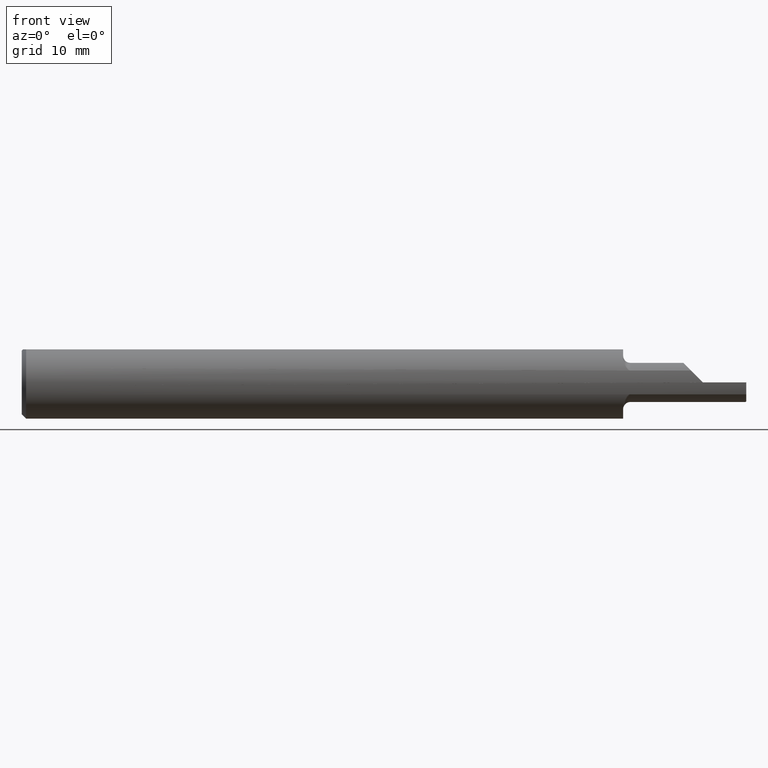
[diagram: clean part render]
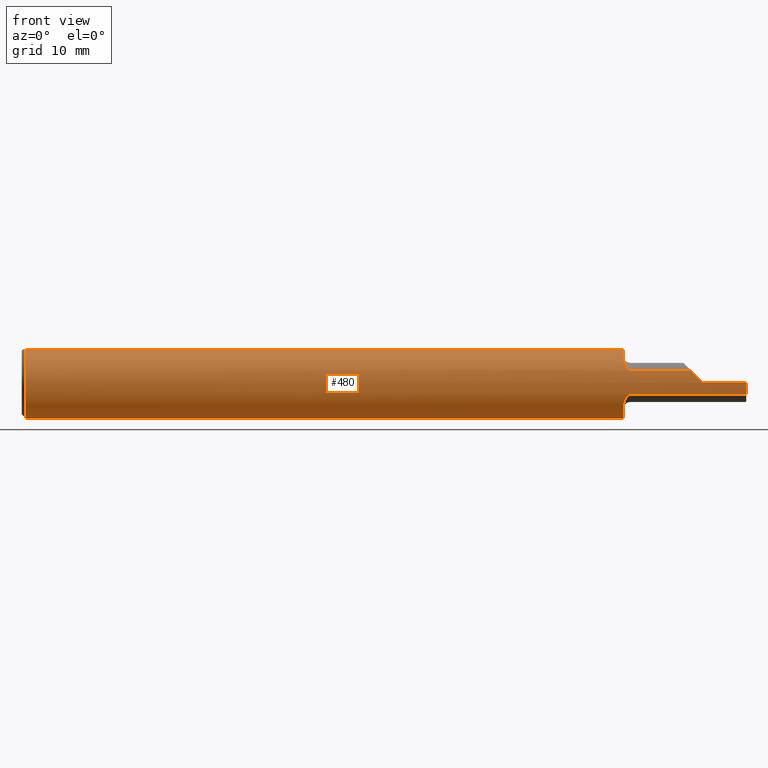
[diagram: same view with one face highlighted and labeled with its STEP entity id]
A machine part, front view. The second image highlights one B-rep face of the part: STEP entity #480.
In plain terms, the highlighted cylindrical surface (edge-blend (fillet) strip) has radius 3.1712 mm, axis along (-1, -0, -0).
Its self-contained STEP definition (entity closure, byte-faithful):
#5 = DIRECTION ( 'NONE',  ( -1.000000000000000000, -0.000000000000000000, -0.000000000000000000 ) ) ;
#11 = ORIENTED_EDGE ( 'NONE', *, *, #742, .F. ) ;
#20 = CIRCLE ( 'NONE', #298, 0.1248500000000000026 ) ;
#21 = VERTEX_POINT ( 'NONE', #659 ) ;
#30 = CARTESIAN_POINT ( 'NONE',  ( 2.500000000000000000, -0.1178880730380729852, -0.04110869415792685333 ) ) ;
#43 = CARTESIAN_POINT ( 'NONE',  ( 2.500000000000000000, 0.000000000000000000, 0.000000000000000000 ) ) ;
#45 = EDGE_CURVE ( 'NONE', #618, #645, #666, .T. ) ;
#54 = LINE ( 'NONE', #920, #256 ) ;
#69 = CARTESIAN_POINT ( 'NONE',  ( 2.088805720551186074, -0.1151363458569193837, -0.04834088676794719153 ) ) ;
#75 = CARTESIAN_POINT ( 'NONE',  ( 2.078579630862570582, -0.1044777942651883146, -0.06855471305740289123 ) ) ;
#79 = ORIENTED_EDGE ( 'NONE', *, *, #161, .T. ) ;
#82 = VERTEX_POINT ( 'NONE', #880 ) ;
#114 = EDGE_CURVE ( 'NONE', #171, #329, #207, .T. ) ;
#132 = CARTESIAN_POINT ( 'NONE',  ( 2.097138575833328744, -0.1178880730380729991, 0.04110869415792683251 ) ) ;
#133 = DIRECTION ( 'NONE',  ( 1.000000000000000000, 0.000000000000000000, 0.000000000000000000 ) ) ;
#148 = VERTEX_POINT ( 'NONE', #688 ) ;
#157 = CARTESIAN_POINT ( 'NONE',  ( 2.350000000000000089, -0.1248499599519359016, 9.999999999961100661E-05 ) ) ;
#161 = EDGE_CURVE ( 'NONE', #171, #21, #975, .T. ) ;
#162 = EDGE_CURVE ( 'NONE', #538, #399, #700, .T. ) ;
#171 = VERTEX_POINT ( 'NONE', #448 ) ;
#174 = CARTESIAN_POINT ( 'NONE',  ( 2.336004490154644841, -0.1248387500886322388, 0.01409550984535482172 ) ) ;
#181 = CARTESIAN_POINT ( 'NONE',  ( 2.500000000000000000, 0.000000000000000000, 0.000000000000000000 ) ) ;
#207 = CIRCLE ( 'NONE', #335, 0.1248500000000000026 ) ;
#217 = CARTESIAN_POINT ( 'NONE',  ( 2.075463484348166965, -0.09455996579217590403, -0.08170711654871570806 ) ) ;
#226 = CARTESIAN_POINT ( 'NONE',  ( 2.075000000000000178, -0.05124158467494927677, 0.1138500000000000068 ) ) ;
#229 = DIRECTION ( 'NONE',  ( 1.000000000000000000, 0.000000000000000000, 0.000000000000000000 ) ) ;
#237 = VECTOR ( 'NONE', #229, 39.37007874015748143 ) ;
#240 = ORIENTED_EDGE ( 'NONE', *, *, #735, .T. ) ;
#244 = VERTEX_POINT ( 'NONE', #785 ) ;
#246 = LINE ( 'NONE', #776, #237 ) ;
#249 = ORIENTED_EDGE ( 'NONE', *, *, #840, .T. ) ;
#253 = CARTESIAN_POINT ( 'NONE',  ( 2.322206397681024992, -0.1224963014591190363, 0.02789360231897465570 ) ) ;
#256 = VECTOR ( 'NONE', #398, 39.37007874015748143 ) ;
#267 = CARTESIAN_POINT ( 'NONE',  ( 2.500000000000000000, -0.05124158467494929065, 0.1138500000000000068 ) ) ;
#270 = DIRECTION ( 'NONE',  ( 1.000000000000000000, 0.000000000000000000, 0.000000000000000000 ) ) ;
#292 = CARTESIAN_POINT ( 'NONE',  ( 2.100000000000000089, -0.1178880730380729852, 0.04110869415792685333 ) ) ;
#295 = CARTESIAN_POINT ( 'NONE',  ( 0.01499999999999970281, 0.000000000000000000, 0.000000000000000000 ) ) ;
#298 = AXIS2_PLACEMENT_3D ( 'NONE', #956, #270, #572 ) ;
#316 = ORIENTED_EDGE ( 'NONE', *, *, #855, .F. ) ;
#329 = VERTEX_POINT ( 'NONE', #414 ) ;
#335 = AXIS2_PLACEMENT_3D ( 'NONE', #758, #133, #598 ) ;
#343 = CYLINDRICAL_SURFACE ( 'NONE', #746, 0.1248500000000000026 ) ;
#355 = FACE_OUTER_BOUND ( 'NONE', #468, .T. ) ;
#368 = CARTESIAN_POINT ( 'NONE',  ( 2.075472843869164308, -0.09461185655952933371, 0.08164619401006140142 ) ) ;
#369 = CARTESIAN_POINT ( 'NONE',  ( 2.094569448206967444, -0.1173612273236402659, -0.04263257538414207820 ) ) ;
#370 = ORIENTED_EDGE ( 'NONE', *, *, #574, .T. ) ;
#372 = CARTESIAN_POINT ( 'NONE',  ( 2.082148820116562771, -0.1099047179638918265, 0.05947070158462895717 ) ) ;
#377 = DIRECTION ( 'NONE',  ( 1.000000000000000000, -0.000000000000000000, -0.000000000000000000 ) ) ;
#398 = DIRECTION ( 'NONE',  ( -1.000000000000000000, -0.000000000000000000, -0.000000000000000000 ) ) ;
#399 = VERTEX_POINT ( 'NONE', #951 ) ;
#400 = AXIS2_PLACEMENT_3D ( 'NONE', #181, #484, #762 ) ;
#414 = CARTESIAN_POINT ( 'NONE',  ( 2.075000000000000178, 0.05124158467494929065, 0.1138500000000000068 ) ) ;
#417 = B_SPLINE_CURVE_WITH_KNOTS ( 'NONE', 3,
 ( #292, #132, #447, #826, #971, #664, #372, #917, #674, #368, #668, #451 ),
 .UNSPECIFIED., .F., .F.,
 ( 4, 2, 2, 2, 2, 4 ),
 ( 0.000000000000000000, 0.0002139781332481023612, 0.0004279562664962047224, 0.0008559125329924097700, 0.001283868799488614709, 0.001711825065984819974 ),
 .UNSPECIFIED. ) ;
#420 = CARTESIAN_POINT ( 'NONE',  ( 2.350000000000000089, 0.000000000000000000, 0.000000000000000000 ) ) ;
#422 = CARTESIAN_POINT ( 'NONE',  ( 2.075000000000000178, -0.08680804195804191215, 0.08973230383429835200 ) ) ;
#433 = ORIENTED_EDGE ( 'NONE', *, *, #960, .F. ) ;
#440 = CARTESIAN_POINT ( 'NONE',  ( 2.500000000000000000, 0.05124158467494929065, 0.1138500000000000068 ) ) ;
#441 = CARTESIAN_POINT ( 'NONE',  ( 2.082139659934243880, -0.1098890007994705875, -0.05949592994647465855 ) ) ;
#446 = CIRCLE ( 'NONE', #685, 0.1248500000000000026 ) ;
#447 = CARTESIAN_POINT ( 'NONE',  ( 2.094575795023728038, -0.1173638605453972278, 0.04262586039006312916 ) ) ;
#448 = CARTESIAN_POINT ( 'NONE',  ( 2.075000000000000178, -0.08680804195804191215, -0.08973230383429835200 ) ) ;
#451 = CARTESIAN_POINT ( 'NONE',  ( 2.075000000000000178, -0.08680804195804191215, 0.08973230383429835200 ) ) ;
#452 = CARTESIAN_POINT ( 'NONE',  ( 2.075000000000000178, -0.08680804195804191215, -0.08973230383429835200 ) ) ;
#453 = EDGE_CURVE ( 'NONE', #244, #148, #446, .T. ) ;
#457 = CARTESIAN_POINT ( 'NONE',  ( 0.01499999999999969413, -0.05124158467494929065, 0.1138500000000000068 ) ) ;
#460 = ORIENTED_EDGE ( 'NONE', *, *, #162, .T. ) ;
#468 = EDGE_LOOP ( 'NONE', ( #316, #11, #731, #569, #240, #433, #555, #890, #933, #249, #460, #370, #475, #79 ) ) ;
#475 = ORIENTED_EDGE ( 'NONE', *, *, #114, .F. ) ;
#480 = ADVANCED_FACE ( 'NONE', ( #355 ), #343, .T. ) ;
#481 = VERTEX_POINT ( 'NONE', #812 ) ;
#484 = DIRECTION ( 'NONE',  ( 1.000000000000000000, 0.000000000000000000, 0.000000000000000000 ) ) ;
#492 = CIRCLE ( 'NONE', #839, 0.1248500000000000026 ) ;
#498 = EDGE_CURVE ( 'NONE', #618, #778, #20, .T. ) ;
#505 = DIRECTION ( 'NONE',  ( -1.000000000000000000, -0.000000000000000000, -0.000000000000000000 ) ) ;
#521 = DIRECTION ( 'NONE',  ( 1.000000000000000000, -0.000000000000000000, -0.000000000000000000 ) ) ;
#522 = DIRECTION ( 'NONE',  ( 1.000000000000000000, 0.000000000000000000, 0.000000000000000000 ) ) ;
#525 = VECTOR ( 'NONE', #873, 39.37007874015748143 ) ;
#532 = EDGE_CURVE ( 'NONE', #481, #778, #417, .T. ) ;
#538 = VERTEX_POINT ( 'NONE', #982 ) ;
#555 = ORIENTED_EDGE ( 'NONE', *, *, #532, .T. ) ;
#569 = ORIENTED_EDGE ( 'NONE', *, *, #453, .T. ) ;
#572 = DIRECTION ( 'NONE',  ( 0.000000000000000000, 0.000000000000000000, -1.000000000000000000 ) ) ;
#574 = EDGE_CURVE ( 'NONE', #399, #329, #757, .T. ) ;
#598 = DIRECTION ( 'NONE',  ( 0.000000000000000000, 0.000000000000000000, -1.000000000000000000 ) ) ;
#607 = CARTESIAN_POINT ( 'NONE',  ( 2.262500000000000178, -0.1178880730380729852, -0.04110869415792685333 ) ) ;
#610 = CARTESIAN_POINT ( 'NONE',  ( 2.077244443432142429, -0.1013644936721858902, -0.07309500289283984986 ) ) ;
#618 = VERTEX_POINT ( 'NONE', #226 ) ;
#645 = VERTEX_POINT ( 'NONE', #457 ) ;
#659 = CARTESIAN_POINT ( 'NONE',  ( 2.100000000000000089, -0.1178880730380729852, -0.04110869415792685333 ) ) ;
#664 = CARTESIAN_POINT ( 'NONE',  ( 2.084345155916293546, -0.1122401308722703883, 0.05488497975249280458 ) ) ;
#666 = LINE ( 'NONE', #267, #525 ) ;
#668 = CARTESIAN_POINT ( 'NONE',  ( 2.075000000000001066, -0.09084801577314524645, 0.08582398763750828663 ) ) ;
#674 = CARTESIAN_POINT ( 'NONE',  ( 2.077257066675622710, -0.1013963922970315401, 0.07304981880275966677 ) ) ;
#680 = DIRECTION ( 'NONE',  ( 0.000000000000000000, 0.000000000000000000, -1.000000000000000000 ) ) ;
#685 = AXIS2_PLACEMENT_3D ( 'NONE', #420, #962, #948 ) ;
#688 = CARTESIAN_POINT ( 'NONE',  ( 2.350000000000000089, -0.1248499599519359016, 9.999999999961100661E-05 ) ) ;
#700 = CIRCLE ( 'NONE', #877, 0.1248500000000000026 ) ;
#717 = VECTOR ( 'NONE', #5, 39.37007874015748143 ) ;
#731 = ORIENTED_EDGE ( 'NONE', *, *, #958, .T. ) ;
#735 = EDGE_CURVE ( 'NONE', #148, #845, #825, .T. ) ;
#741 = CARTESIAN_POINT ( 'NONE',  ( 2.308991305842072794, -0.1178880730380730268, 0.04110869415792675619 ) ) ;
#742 = EDGE_CURVE ( 'NONE', #82, #764, #908, .T. ) ;
#745 = CARTESIAN_POINT ( 'NONE',  ( 2.090487603854009446, -0.1159976367288706595, -0.04621409347929126415 ) ) ;
#746 = AXIS2_PLACEMENT_3D ( 'NONE', #43, #505, #965 ) ;
#751 = CARTESIAN_POINT ( 'NONE',  ( 2.100000000000000089, -0.1178880730380729852, -0.04110869415792685333 ) ) ;
#757 = LINE ( 'NONE', #440, #774 ) ;
#758 = CARTESIAN_POINT ( 'NONE',  ( 2.075000000000000178, 0.000000000000000000, 0.000000000000000000 ) ) ;
#762 = DIRECTION ( 'NONE',  ( 0.000000000000000000, 0.000000000000000000, -1.000000000000000000 ) ) ;
#764 = VERTEX_POINT ( 'NONE', #30 ) ;
#774 = VECTOR ( 'NONE', #522, 39.37007874015748143 ) ;
#776 = CARTESIAN_POINT ( 'NONE',  ( 2.262500000000000178, -0.1178880730380729852, 0.04110869415792685333 ) ) ;
#778 = VERTEX_POINT ( 'NONE', #422 ) ;
#785 = CARTESIAN_POINT ( 'NONE',  ( 2.350000000000000089, -0.1248499999999999888, -3.367667473011536351E-17 ) ) ;
#812 = CARTESIAN_POINT ( 'NONE',  ( 2.100000000000000089, -0.1178880730380729852, 0.04110869415792685333 ) ) ;
#815 = DIRECTION ( 'NONE',  ( 0.000000000000000000, 0.000000000000000000, -1.000000000000000000 ) ) ;
#822 = CARTESIAN_POINT ( 'NONE',  ( 2.084341522824309401, -0.1122386781385961430, -0.05488888332692708205 ) ) ;
#825 =( BOUNDED_CURVE ( )  B_SPLINE_CURVE ( 3, ( #157, #174, #253, #864 ),
 .UNSPECIFIED., .F., .T. ) 
 B_SPLINE_CURVE_WITH_KNOTS ( ( 4, 4 ),
 ( 4.713189941623711299, 5.047913695406924361 ),
 .UNSPECIFIED. ) 
 CURVE ( )  GEOMETRIC_REPRESENTATION_ITEM ( )  RATIONAL_B_SPLINE_CURVE ( ( 1.000000000000000000, 0.9906851070496518474, 0.9906851070496518474, 1.000000000000000000 ) ) 
 REPRESENTATION_ITEM ( '' )  );
#826 = CARTESIAN_POINT ( 'NONE',  ( 2.090471370292704023, -0.1159916994806585028, 0.04622948612845707850 ) ) ;
#839 = AXIS2_PLACEMENT_3D ( 'NONE', #295, #521, #815 ) ;
#840 = EDGE_CURVE ( 'NONE', #645, #538, #492, .T. ) ;
#845 = VERTEX_POINT ( 'NONE', #741 ) ;
#855 = EDGE_CURVE ( 'NONE', #764, #21, #981, .T. ) ;
#864 = CARTESIAN_POINT ( 'NONE',  ( 2.308991305842072794, -0.1178880730380730268, 0.04110869415792675619 ) ) ;
#873 = DIRECTION ( 'NONE',  ( -1.000000000000000000, -0.000000000000000000, -0.000000000000000000 ) ) ;
#877 = AXIS2_PLACEMENT_3D ( 'NONE', #979, #377, #680 ) ;
#880 = CARTESIAN_POINT ( 'NONE',  ( 2.500000000000000000, -0.1248499999999999471, -3.367667473011537583E-17 ) ) ;
#890 = ORIENTED_EDGE ( 'NONE', *, *, #498, .F. ) ;
#901 = CARTESIAN_POINT ( 'NONE',  ( 2.075000000000000178, -0.09084981605085465373, -0.08582224602856410034 ) ) ;
#908 = CIRCLE ( 'NONE', #400, 0.1248500000000000026 ) ;
#909 = CARTESIAN_POINT ( 'NONE',  ( 2.097146851094465525, -0.1178880730380730130, -0.04110869415792674925 ) ) ;
#917 = CARTESIAN_POINT ( 'NONE',  ( 2.078561661930270255, -0.1044486834845270024, 0.06860236071768735511 ) ) ;
#920 = CARTESIAN_POINT ( 'NONE',  ( 2.500000000000000000, -0.1248500000000000026, -3.367667473011537583E-17 ) ) ;
#933 = ORIENTED_EDGE ( 'NONE', *, *, #45, .T. ) ;
#948 = DIRECTION ( 'NONE',  ( 0.000000000000000000, 0.000000000000000000, 1.000000000000000000 ) ) ;
#951 = CARTESIAN_POINT ( 'NONE',  ( 0.01499999999999970281, 0.05124158467494929065, 0.1138500000000000068 ) ) ;
#956 = CARTESIAN_POINT ( 'NONE',  ( 2.075000000000000178, 0.000000000000000000, 0.000000000000000000 ) ) ;
#958 = EDGE_CURVE ( 'NONE', #82, #244, #54, .T. ) ;
#960 = EDGE_CURVE ( 'NONE', #481, #845, #246, .T. ) ;
#962 = DIRECTION ( 'NONE',  ( -1.000000000000000000, -0.000000000000000000, -0.000000000000000000 ) ) ;
#965 = DIRECTION ( 'NONE',  ( 0.000000000000000000, 0.000000000000000000, 1.000000000000000000 ) ) ;
#971 = CARTESIAN_POINT ( 'NONE',  ( 2.088797751365139010, -0.1151316249329346203, 0.04835186460175136536 ) ) ;
#975 = B_SPLINE_CURVE_WITH_KNOTS ( 'NONE', 3,
 ( #452, #901, #217, #610, #75, #441, #822, #69, #745, #369, #909, #751 ),
 .UNSPECIFIED., .F., .F.,
 ( 4, 2, 2, 2, 2, 4 ),
 ( 0.000000000000000000, 0.0004231261345662541500, 0.0008462522691325083000, 0.001269378403698762396, 0.001480941470981889715, 0.001692504538265017251 ),
 .UNSPECIFIED. ) ;
#979 = CARTESIAN_POINT ( 'NONE',  ( 0.01499999999999970281, 0.000000000000000000, 0.000000000000000000 ) ) ;
#981 = LINE ( 'NONE', #607, #717 ) ;
#982 = CARTESIAN_POINT ( 'NONE',  ( 0.01499999999999970281, 0.000000000000000000, -0.1248500000000000026 ) ) ;